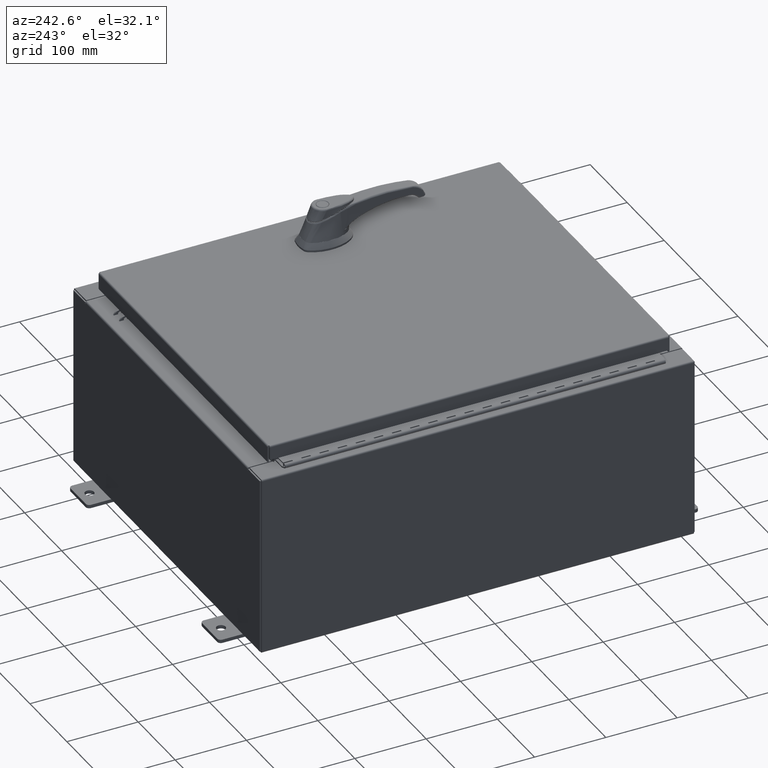
[diagram: clean part render]
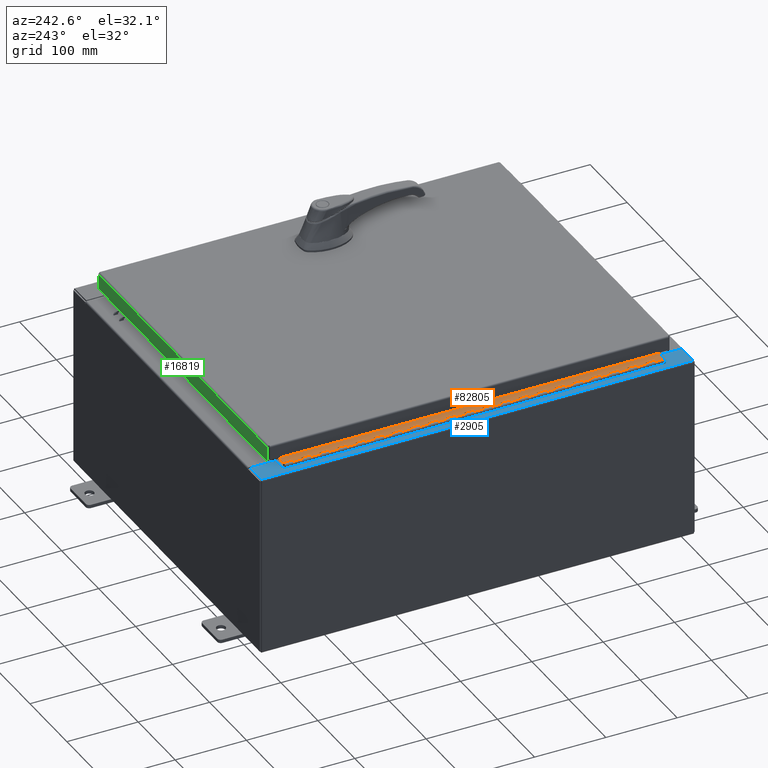
[diagram: same view with three faces highlighted in distinct colors, each labeled with its STEP entity id]
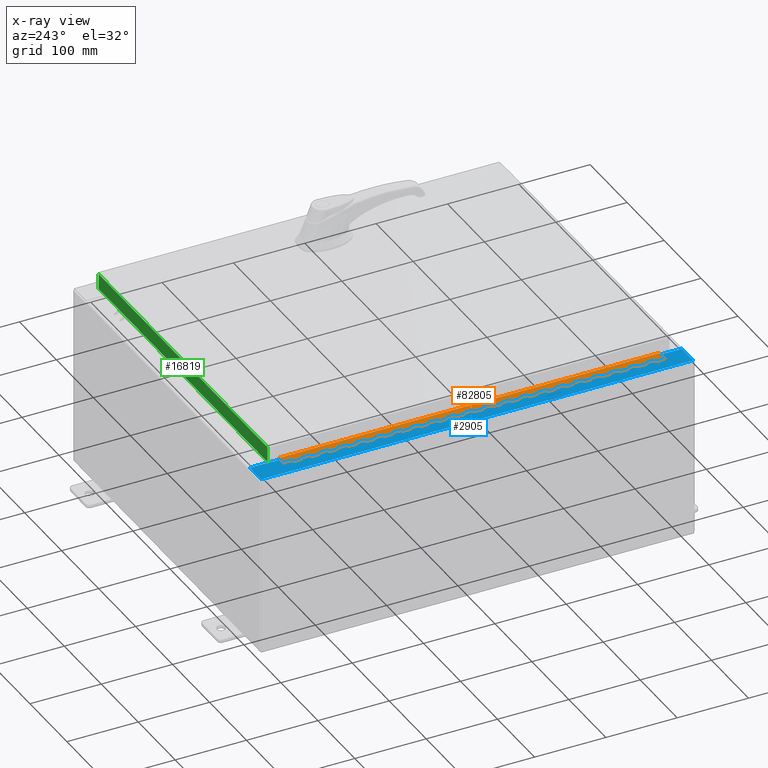
[diagram: x-ray of the same camera — body ghosted, the three highlighted faces saturated]
A machine part, auxiliary view with three faces highlighted in distinct colors.
The next image is the same camera in x-ray (body ghosted, the three faces saturated) — at least one of them is partly hidden behind the body in this view.
Their STEP definitions:

[orange] entity #82805 — the highlighted planar face has unit normal (-0, -0, 1).
#245 = VECTOR ( 'NONE', #78910, 39.37007874015748100 ) ;
#1133 = CARTESIAN_POINT ( 'NONE',  ( -0.6869999999999978300, 0.6754999999999996600, -5.000000000000000000 ) ) ;
#1215 = EDGE_CURVE ( 'NONE', #98426, #89876, #86142, .T. ) ;
#1486 = DIRECTION ( 'NONE',  ( 3.389037039080723100E-015, 1.000000000000000000, -0.0000000000000000000 ) ) ;
#1596 = VECTOR ( 'NONE', #99222, 39.37007874015748100 ) ;
#1697 = VECTOR ( 'NONE', #13944, 39.37007874015748100 ) ;
#1719 = DIRECTION ( 'NONE',  ( -3.389037039080723100E-015, -1.000000000000000000, 0.0000000000000000000 ) ) ;
#1795 = VERTEX_POINT ( 'NONE', #86577 ) ;
#1927 = CARTESIAN_POINT ( 'NONE',  ( -0.6869999999999978300, 0.6754999999999996600, -12.49999999999999800 ) ) ;
#2025 = VECTOR ( 'NONE', #79116, 39.37007874015748100 ) ;
#2128 = CARTESIAN_POINT ( 'NONE',  ( -0.6869999999999982800, 0.5504999999999997700, -20.50000000000000400 ) ) ;
#3467 = CARTESIAN_POINT ( 'NONE',  ( -0.6869999999999998300, 0.07549999999999991400, -21.00000000000000000 ) ) ;
#4033 = CARTESIAN_POINT ( 'NONE',  ( -0.6869999999999978300, 0.6754999999999996600, -20.00000000000000000 ) ) ;
#4083 = CARTESIAN_POINT ( 'NONE',  ( -0.6869999999999982800, 0.5504999999999997700, -9.500000000000000000 ) ) ;
#4100 = LINE ( 'NONE', #50893, #98999 ) ;
#4306 = VERTEX_POINT ( 'NONE', #85673 ) ;
#4532 = LINE ( 'NONE', #91220, #24859 ) ;
#4533 = VECTOR ( 'NONE', #45377, 39.37007874015748100 ) ;
#4940 = VERTEX_POINT ( 'NONE', #29490 ) ;
#5050 = VECTOR ( 'NONE', #111420, 39.37007874015748100 ) ;
#5444 = DIRECTION ( 'NONE',  ( 0.0000000000000000000, 0.0000000000000000000, 1.000000000000000000 ) ) ;
#5591 = VERTEX_POINT ( 'NONE', #62369 ) ;
#5974 = CARTESIAN_POINT ( 'NONE',  ( -0.6869999999999982800, 0.5504999999999997700, -8.500000000000000000 ) ) ;
#6077 = EDGE_CURVE ( 'NONE', #13432, #5591, #21992, .T. ) ;
#6509 = EDGE_CURVE ( 'NONE', #42896, #46609, #8448, .T. ) ;
#6587 = VECTOR ( 'NONE', #95588, 39.37007874015748100 ) ;
#6817 = ORIENTED_EDGE ( 'NONE', *, *, #13644, .F. ) ;
#6831 = VECTOR ( 'NONE', #63634, 39.37007874015748100 ) ;
#6838 = CARTESIAN_POINT ( 'NONE',  ( -0.6869999999999978300, 0.6754999999999996600, -20.50000000000000400 ) ) ;
#6901 = VERTEX_POINT ( 'NONE', #61366 ) ;
#6969 = EDGE_CURVE ( 'NONE', #94649, #4306, #70735, .T. ) ;
#6993 = VECTOR ( 'NONE', #67126, 39.37007874015748100 ) ;
#7235 = EDGE_CURVE ( 'NONE', #88875, #78121, #11048, .T. ) ;
#7550 = VERTEX_POINT ( 'NONE', #100424 ) ;
#7555 = ORIENTED_EDGE ( 'NONE', *, *, #98797, .F. ) ;
#7671 = ORIENTED_EDGE ( 'NONE', *, *, #103650, .F. ) ;
#7872 = LINE ( 'NONE', #36362, #30915 ) ;
#7903 = CARTESIAN_POINT ( 'NONE',  ( -0.6869999999999978300, 0.6754999999999996600, -14.49999999999999800 ) ) ;
#8011 = LINE ( 'NONE', #91549, #54122 ) ;
#8018 = CARTESIAN_POINT ( 'NONE',  ( -0.6869999999999982800, 0.5504999999999997700, -11.00000000000000000 ) ) ;
#8081 = VECTOR ( 'NONE', #81654, 39.37007874015748100 ) ;
#8144 = ORIENTED_EDGE ( 'NONE', *, *, #60128, .T. ) ;
#8213 = VERTEX_POINT ( 'NONE', #49531 ) ;
#8222 = CARTESIAN_POINT ( 'NONE',  ( -0.6869999999999978300, 0.6754999999999996600, -11.50000000000000000 ) ) ;
#8448 = LINE ( 'NONE', #72405, #95250 ) ;
#8568 = CARTESIAN_POINT ( 'NONE',  ( -0.6869999999999978300, 0.6754999999999996600, -19.00000000000000000 ) ) ;
#8624 = CARTESIAN_POINT ( 'NONE',  ( -0.6869999999999982800, 0.5504999999999997700, -19.50000000000000000 ) ) ;
#8689 = ORIENTED_EDGE ( 'NONE', *, *, #24264, .F. ) ;
#9019 = EDGE_CURVE ( 'NONE', #46733, #4306, #105757, .T. ) ;
#9525 = CARTESIAN_POINT ( 'NONE',  ( -0.6869999999999978300, 0.6754999999999996600, -6.499999999999999100 ) ) ;
#9632 = DIRECTION ( 'NONE',  ( -3.389037039080723100E-015, -1.000000000000000000, 0.0000000000000000000 ) ) ;
#9866 = CARTESIAN_POINT ( 'NONE',  ( -0.6869999999999973900, 0.8004999999999995500, -12.99999999999999800 ) ) ;
#9868 = LINE ( 'NONE', #62295, #53239 ) ;
#10053 = EDGE_CURVE ( 'NONE', #30767, #35459, #8011, .T. ) ;
#10404 = DIRECTION ( 'NONE',  ( 3.389037039080723100E-015, 1.000000000000000000, -0.0000000000000000000 ) ) ;
#10578 = EDGE_CURVE ( 'NONE', #69516, #39686, #52732, .T. ) ;
#10647 = CARTESIAN_POINT ( 'NONE',  ( -0.6869999999999978300, 0.6754999999999996600, -17.99999999999999600 ) ) ;
#10717 = CARTESIAN_POINT ( 'NONE',  ( -0.6869999999999973900, 0.8004999999999995500, -14.99999999999999800 ) ) ;
#11048 = LINE ( 'NONE', #37208, #59863 ) ;
#11170 = CARTESIAN_POINT ( 'NONE',  ( -0.6869999999999978300, 0.6754999999999996600, -7.499999999999999100 ) ) ;
#11378 = ORIENTED_EDGE ( 'NONE', *, *, #51311, .F. ) ;
#11478 = VECTOR ( 'NONE', #62601, 39.37007874015748100 ) ;
#11537 = VECTOR ( 'NONE', #69844, 39.37007874015748100 ) ;
#11668 = EDGE_CURVE ( 'NONE', #51905, #92235, #21374, .T. ) ;
#11967 = EDGE_CURVE ( 'NONE', #83050, #6901, #40751, .T. ) ;
#12679 = ORIENTED_EDGE ( 'NONE', *, *, #88886, .F. ) ;
#12693 = VERTEX_POINT ( 'NONE', #27062 ) ;
#12726 = VERTEX_POINT ( 'NONE', #93585 ) ;
#12937 = LINE ( 'NONE', #16157, #102414 ) ;
#13179 = DIRECTION ( 'NONE',  ( 3.389037039080723100E-015, 1.000000000000000000, -0.0000000000000000000 ) ) ;
#13238 = CARTESIAN_POINT ( 'NONE',  ( -0.6869999999999973900, 0.8004999999999995500, -13.50000000000000000 ) ) ;
#13432 = VERTEX_POINT ( 'NONE', #110444 ) ;
#13517 = LINE ( 'NONE', #31583, #33872 ) ;
#13523 = LINE ( 'NONE', #62242, #79957 ) ;
#13612 = VERTEX_POINT ( 'NONE', #61585 ) ;
#13644 = EDGE_CURVE ( 'NONE', #94649, #61203, #97532, .T. ) ;
#13868 = VECTOR ( 'NONE', #18163, 39.37007874015748100 ) ;
#13944 = DIRECTION ( 'NONE',  ( 0.0000000000000000000, 0.0000000000000000000, 1.000000000000000000 ) ) ;
#14123 = CARTESIAN_POINT ( 'NONE',  ( -0.6869999999999982800, 0.5504999999999997700, -3.500000000000000000 ) ) ;
#14128 = ORIENTED_EDGE ( 'NONE', *, *, #60310, .T. ) ;
#14280 = EDGE_CURVE ( 'NONE', #12726, #31728, #67649, .T. ) ;
#14991 = DIRECTION ( 'NONE',  ( 0.0000000000000000000, 0.0000000000000000000, 1.000000000000000000 ) ) ;
#15080 = VECTOR ( 'NONE', #75595, 39.37007874015748100 ) ;
#15107 = VERTEX_POINT ( 'NONE', #46438 ) ;
#15355 = ORIENTED_EDGE ( 'NONE', *, *, #104162, .F. ) ;
#15755 = DIRECTION ( 'NONE',  ( -3.389037039080723100E-015, -1.000000000000000000, 0.0000000000000000000 ) ) ;
#15800 = ORIENTED_EDGE ( 'NONE', *, *, #49452, .T. ) ;
#16157 = CARTESIAN_POINT ( 'NONE',  ( -0.6869999999999978300, 0.6754999999999996600, -21.00000000000000000 ) ) ;
#16411 = DIRECTION ( 'NONE',  ( 3.389037039080723100E-015, 1.000000000000000000, -0.0000000000000000000 ) ) ;
#16712 = CARTESIAN_POINT ( 'NONE',  ( -0.6869999999999973900, 0.8004999999999995500, -1.499999999999999800 ) ) ;
#16813 = VERTEX_POINT ( 'NONE', #8018 ) ;
#17085 = VECTOR ( 'NONE', #87684, 39.37007874015748100 ) ;
#17171 = CARTESIAN_POINT ( 'NONE',  ( -0.6869999999999978300, 0.6754999999999996600, -21.00000000000000000 ) ) ;
#17320 = VERTEX_POINT ( 'NONE', #78911 ) ;
#17367 = ORIENTED_EDGE ( 'NONE', *, *, #42492, .F. ) ;
#17472 = CARTESIAN_POINT ( 'NONE',  ( -0.6869999999999973900, 0.8004999999999995500, -11.99999999999999800 ) ) ;
#17555 = VECTOR ( 'NONE', #110610, 39.37007874015748100 ) ;
#17599 = FACE_OUTER_BOUND ( 'NONE', #63999, .T. ) ;
#17778 = CARTESIAN_POINT ( 'NONE',  ( -0.6869999999999978300, 0.6754999999999996600, -9.500000000000000000 ) ) ;
#17889 = CARTESIAN_POINT ( 'NONE',  ( -0.6869999999999973900, 0.8004999999999995500, -4.000000000000000000 ) ) ;
#17930 = ORIENTED_EDGE ( 'NONE', *, *, #59123, .F. ) ;
#18105 = VERTEX_POINT ( 'NONE', #93495 ) ;
#18127 = DIRECTION ( 'NONE',  ( -3.389037039080723100E-015, -1.000000000000000000, 0.0000000000000000000 ) ) ;
#18163 = DIRECTION ( 'NONE',  ( 3.389037039080723100E-015, 1.000000000000000000, -0.0000000000000000000 ) ) ;
#18191 = EDGE_CURVE ( 'NONE', #13612, #78121, #12937, .T. ) ;
#18254 = ORIENTED_EDGE ( 'NONE', *, *, #73464, .F. ) ;
#18309 = CARTESIAN_POINT ( 'NONE',  ( -0.6869999999999973900, 0.8004999999999995500, -18.50000000000000000 ) ) ;
#18342 = CARTESIAN_POINT ( 'NONE',  ( -0.6869999999999978300, 0.6754999999999996600, -15.50000000000000000 ) ) ;
#18404 = DIRECTION ( 'NONE',  ( -3.389037039080723100E-015, -1.000000000000000000, 0.0000000000000000000 ) ) ;
#18978 = EDGE_CURVE ( 'NONE', #61203, #100637, #106566, .T. ) ;
#19285 = VECTOR ( 'NONE', #106730, 39.37007874015748100 ) ;
#19355 = ORIENTED_EDGE ( 'NONE', *, *, #11668, .F. ) ;
#19932 = LINE ( 'NONE', #112209, #63317 ) ;
#20037 = LINE ( 'NONE', #99201, #106791 ) ;
#20068 = CARTESIAN_POINT ( 'NONE',  ( -0.6869999999999982800, 0.5504999999999997700, -8.500000000000000000 ) ) ;
#20422 = EDGE_CURVE ( 'NONE', #103805, #77217, #71134, .T. ) ;
#20787 = DIRECTION ( 'NONE',  ( -3.389037039080723100E-015, -1.000000000000000000, 0.0000000000000000000 ) ) ;
#20868 = LINE ( 'NONE', #85088, #23596 ) ;
#21194 = VECTOR ( 'NONE', #5444, 39.37007874015748100 ) ;
#21300 = EDGE_CURVE ( 'NONE', #102275, #7550, #96833, .T. ) ;
#21374 = LINE ( 'NONE', #16712, #110853 ) ;
#21963 = LINE ( 'NONE', #37406, #19285 ) ;
#21992 = LINE ( 'NONE', #42190, #111483 ) ;
#22212 = ORIENTED_EDGE ( 'NONE', *, *, #33923, .T. ) ;
#22555 = ORIENTED_EDGE ( 'NONE', *, *, #69768, .T. ) ;
#22722 = ORIENTED_EDGE ( 'NONE', *, *, #73048, .F. ) ;
#22854 = DIRECTION ( 'NONE',  ( -3.389037039080723100E-015, -1.000000000000000000, 0.0000000000000000000 ) ) ;
#22904 = DIRECTION ( 'NONE',  ( 0.0000000000000000000, -0.0000000000000000000, -1.000000000000000000 ) ) ;
#23109 = EDGE_CURVE ( 'NONE', #70336, #86796, #24703, .T. ) ;
#23212 = EDGE_CURVE ( 'NONE', #31752, #52184, #21963, .T. ) ;
#23544 = LINE ( 'NONE', #107494, #52066 ) ;
#23553 = DIRECTION ( 'NONE',  ( 0.0000000000000000000, -0.0000000000000000000, -1.000000000000000000 ) ) ;
#23596 = VECTOR ( 'NONE', #15755, 39.37007874015748100 ) ;
#23875 = CARTESIAN_POINT ( 'NONE',  ( -0.6869999999999978300, 0.6754999999999996600, -11.00000000000000000 ) ) ;
#24059 = CARTESIAN_POINT ( 'NONE',  ( -0.6869999999999978300, 0.6754999999999996600, -21.00000000000000000 ) ) ;
#24191 = VERTEX_POINT ( 'NONE', #77131 ) ;
#24264 = EDGE_CURVE ( 'NONE', #17320, #46609, #42208, .T. ) ;
#24625 = VECTOR ( 'NONE', #54756, 39.37007874015748100 ) ;
#24703 = LINE ( 'NONE', #65853, #1697 ) ;
#24741 = CARTESIAN_POINT ( 'NONE',  ( -0.6869999999999973900, 0.8004999999999995500, -6.499999999999999100 ) ) ;
#24859 = VECTOR ( 'NONE', #56743, 39.37007874015748100 ) ;
#24898 = ORIENTED_EDGE ( 'NONE', *, *, #11967, .F. ) ;
#25444 = LINE ( 'NONE', #34702, #51192 ) ;
#25614 = LINE ( 'NONE', #24741, #86599 ) ;
#26164 = CARTESIAN_POINT ( 'NONE',  ( -0.6869999999999978300, 0.6754999999999996600, -14.99999999999999800 ) ) ;
#26316 = ORIENTED_EDGE ( 'NONE', *, *, #105627, .F. ) ;
#26320 = ORIENTED_EDGE ( 'NONE', *, *, #89802, .F. ) ;
#26463 = ORIENTED_EDGE ( 'NONE', *, *, #7235, .F. ) ;
#26828 = VECTOR ( 'NONE', #99921, 39.37007874015748100 ) ;
#26928 = ORIENTED_EDGE ( 'NONE', *, *, #55634, .T. ) ;
#26959 = CARTESIAN_POINT ( 'NONE',  ( -0.6869999999999982800, 0.5504999999999997700, -21.00000000000000000 ) ) ;
#27052 = CARTESIAN_POINT ( 'NONE',  ( -0.6869999999999982800, 0.5504999999999997700, -0.5000000000000000000 ) ) ;
#27062 = CARTESIAN_POINT ( 'NONE',  ( -0.6869999999999978300, 0.6754999999999996600, -12.99999999999999800 ) ) ;
#27166 = DIRECTION ( 'NONE',  ( 0.0000000000000000000, 0.0000000000000000000, 1.000000000000000000 ) ) ;
#27181 = DIRECTION ( 'NONE',  ( 1.000000000000000000, -3.369016658928398200E-015, 0.0000000000000000000 ) ) ;
#27186 = EDGE_CURVE ( 'NONE', #43013, #90218, #28442, .T. ) ;
#27280 = VECTOR ( 'NONE', #36013, 39.37007874015748100 ) ;
#27366 = ORIENTED_EDGE ( 'NONE', *, *, #81843, .F. ) ;
#27475 = CARTESIAN_POINT ( 'NONE',  ( -0.6869999999999973900, 0.8004999999999995500, -0.5000000000000000000 ) ) ;
#27604 = CARTESIAN_POINT ( 'NONE',  ( -0.6869999999999973900, 0.8004999999999995500, -5.000000000000000000 ) ) ;
#27655 = CARTESIAN_POINT ( 'NONE',  ( -0.6869999999999982800, 0.5504999999999997700, -2.000000000000000000 ) ) ;
#27668 = VECTOR ( 'NONE', #99432, 39.37007874015748100 ) ;
#27775 = EDGE_CURVE ( 'NONE', #62250, #45181, #93473, .T. ) ;
#28088 = LINE ( 'NONE', #78750, #97230 ) ;
#28442 = LINE ( 'NONE', #40957, #94894 ) ;
#28628 = CARTESIAN_POINT ( 'NONE',  ( -0.6869999999999978300, 0.6754999999999996600, -21.00000000000000000 ) ) ;
#28692 = VERTEX_POINT ( 'NONE', #18342 ) ;
#28878 = CARTESIAN_POINT ( 'NONE',  ( -0.6869999999999982800, 0.5504999999999997700, -14.49999999999999800 ) ) ;
#29137 = VERTEX_POINT ( 'NONE', #48908 ) ;
#29315 = VECTOR ( 'NONE', #48960, 39.37007874015748100 ) ;
#29490 = CARTESIAN_POINT ( 'NONE',  ( -0.6869999999999982800, 0.5504999999999997700, -6.000000000000000900 ) ) ;
#29637 = LINE ( 'NONE', #101172, #70326 ) ;
#29744 = VECTOR ( 'NONE', #94748, 39.37007874015748100 ) ;
#30452 = CARTESIAN_POINT ( 'NONE',  ( -0.6869999999999978300, 0.6754999999999996600, -1.499999999999999800 ) ) ;
#30615 = CARTESIAN_POINT ( 'NONE',  ( -0.6869999999999973900, 0.8004999999999995500, -8.000000000000000000 ) ) ;
#30767 = VERTEX_POINT ( 'NONE', #11170 ) ;
#30915 = VECTOR ( 'NONE', #96969, 39.37007874015748100 ) ;
#30936 = DIRECTION ( 'NONE',  ( 0.0000000000000000000, 0.0000000000000000000, 1.000000000000000000 ) ) ;
#30972 = EDGE_CURVE ( 'NONE', #59650, #88875, #95790, .T. ) ;
#31197 = VERTEX_POINT ( 'NONE', #111467 ) ;
#31227 = LINE ( 'NONE', #24059, #97683 ) ;
#31583 = CARTESIAN_POINT ( 'NONE',  ( -0.6869999999999973900, 0.8004999999999995500, -8.500000000000000000 ) ) ;
#31728 = VERTEX_POINT ( 'NONE', #93689 ) ;
#31752 = VERTEX_POINT ( 'NONE', #110695 ) ;
#32065 = LINE ( 'NONE', #38751, #55096 ) ;
#32348 = ORIENTED_EDGE ( 'NONE', *, *, #92846, .F. ) ;
#32476 = EDGE_CURVE ( 'NONE', #84527, #77217, #65719, .T. ) ;
#32587 = EDGE_CURVE ( 'NONE', #39686, #104034, #37244, .T. ) ;
#32763 = LINE ( 'NONE', #58380, #6993 ) ;
#33019 = VERTEX_POINT ( 'NONE', #77653 ) ;
#33103 = DIRECTION ( 'NONE',  ( -3.389037039080723100E-015, -1.000000000000000000, 0.0000000000000000000 ) ) ;
#33497 = ORIENTED_EDGE ( 'NONE', *, *, #100402, .F. ) ;
#33658 = EDGE_CURVE ( 'NONE', #62696, #84522, #23544, .T. ) ;
#33660 = VERTEX_POINT ( 'NONE', #46878 ) ;
#33872 = VECTOR ( 'NONE', #22854, 39.37007874015748100 ) ;
#33923 = EDGE_CURVE ( 'NONE', #31197, #84830, #73627, .T. ) ;
#34206 = VERTEX_POINT ( 'NONE', #94533 ) ;
#34279 = ORIENTED_EDGE ( 'NONE', *, *, #14280, .F. ) ;
#34320 = CARTESIAN_POINT ( 'NONE',  ( -0.6869999999999978300, 0.6754999999999996600, -14.00000000000000000 ) ) ;
#34637 = DIRECTION ( 'NONE',  ( 0.0000000000000000000, 0.0000000000000000000, 1.000000000000000000 ) ) ;
#34702 = CARTESIAN_POINT ( 'NONE',  ( -0.6869999999999982800, 0.5504999999999997700, -10.50000000000000000 ) ) ;
#35103 = ORIENTED_EDGE ( 'NONE', *, *, #57056, .T. ) ;
#35240 = LINE ( 'NONE', #8624, #101631 ) ;
#35308 = CARTESIAN_POINT ( 'NONE',  ( -0.6869999999999982800, 0.5504999999999997700, -2.999999999999999600 ) ) ;
#35381 = CARTESIAN_POINT ( 'NONE',  ( -0.6869999999999973900, 0.8004999999999995500, -16.00000000000000000 ) ) ;
#35459 = VERTEX_POINT ( 'NONE', #48397 ) ;
#35541 = VERTEX_POINT ( 'NONE', #5974 ) ;
#35758 = VECTOR ( 'NONE', #47520, 39.37007874015748100 ) ;
#35965 = LINE ( 'NONE', #30615, #56245 ) ;
#36013 = DIRECTION ( 'NONE',  ( 3.389037039080723100E-015, 1.000000000000000000, -0.0000000000000000000 ) ) ;
#36362 = CARTESIAN_POINT ( 'NONE',  ( -0.6869999999999973900, 0.8004999999999995500, -7.000000000000000000 ) ) ;
#36620 = VERTEX_POINT ( 'NONE', #17778 ) ;
#36658 = EDGE_CURVE ( 'NONE', #8213, #82488, #106091, .T. ) ;
#36700 = CARTESIAN_POINT ( 'NONE',  ( -0.6869999999999982800, 0.5504999999999997700, -13.50000000000000000 ) ) ;
#37047 = LINE ( 'NONE', #4083, #57351 ) ;
#37070 = ORIENTED_EDGE ( 'NONE', *, *, #95415, .F. ) ;
#37208 = CARTESIAN_POINT ( 'NONE',  ( -0.6869999999999973900, 0.8004999999999995500, -2.999999999999999600 ) ) ;
#37244 = LINE ( 'NONE', #10717, #11478 ) ;
#37299 = LINE ( 'NONE', #17889, #11537 ) ;
#37406 = CARTESIAN_POINT ( 'NONE',  ( -0.6869999999999973900, 0.8004999999999995500, -14.00000000000000000 ) ) ;
#37733 = ORIENTED_EDGE ( 'NONE', *, *, #69371, .F. ) ;
#37760 = LINE ( 'NONE', #104315, #81132 ) ;
#37941 = DIRECTION ( 'NONE',  ( 3.369016658928398200E-015, 1.000000000000000000, 0.0000000000000000000 ) ) ;
#38149 = ORIENTED_EDGE ( 'NONE', *, *, #6077, .F. ) ;
#38499 = CARTESIAN_POINT ( 'NONE',  ( -0.6869999999999982800, 0.5504999999999997700, -1.499999999999999800 ) ) ;
#38577 = DIRECTION ( 'NONE',  ( 0.0000000000000000000, -0.0000000000000000000, -1.000000000000000000 ) ) ;
#38751 = CARTESIAN_POINT ( 'NONE',  ( -0.6869999999999973900, 0.8004999999999995500, -12.49999999999999800 ) ) ;
#38819 = CARTESIAN_POINT ( 'NONE',  ( -0.6869999999999978300, 0.6754999999999996600, -21.00000000000000000 ) ) ;
#39174 = CARTESIAN_POINT ( 'NONE',  ( -0.6869999999999982800, 0.5504999999999997700, -2.500000000000000000 ) ) ;
#39287 = LINE ( 'NONE', #107057, #103019 ) ;
#39515 = EDGE_CURVE ( 'NONE', #70149, #99660, #9868, .T. ) ;
#39686 = VERTEX_POINT ( 'NONE', #89885 ) ;
#39770 = CARTESIAN_POINT ( 'NONE',  ( -0.6869999999999982800, 0.5504999999999997700, -12.49999999999999800 ) ) ;
#40062 = VECTOR ( 'NONE', #1486, 39.37007874015748100 ) ;
#40751 = LINE ( 'NONE', #107190, #107157 ) ;
#40862 = EDGE_CURVE ( 'NONE', #101493, #29137, #57104, .T. ) ;
#40867 = LINE ( 'NONE', #58175, #15080 ) ;
#40957 = CARTESIAN_POINT ( 'NONE',  ( -0.6869999999999982800, 0.5504999999999997700, -18.50000000000000000 ) ) ;
#41405 = CARTESIAN_POINT ( 'NONE',  ( -0.6870000000000022800, -0.6245000000000003900, 0.0000000000000000000 ) ) ;
#41658 = VERTEX_POINT ( 'NONE', #7903 ) ;
#41959 = ORIENTED_EDGE ( 'NONE', *, *, #109565, .F. ) ;
#42190 = CARTESIAN_POINT ( 'NONE',  ( -0.6869999999999973900, 0.8004999999999995500, -9.000000000000000000 ) ) ;
#42208 = LINE ( 'NONE', #2128, #82844 ) ;
#42426 = CARTESIAN_POINT ( 'NONE',  ( -0.6869999999999978300, 0.6754999999999996600, -21.00000000000000000 ) ) ;
#42492 = EDGE_CURVE ( 'NONE', #102275, #35541, #13517, .T. ) ;
#42583 = ORIENTED_EDGE ( 'NONE', *, *, #92075, .F. ) ;
#42869 = ORIENTED_EDGE ( 'NONE', *, *, #21300, .T. ) ;
#42896 = VERTEX_POINT ( 'NONE', #3467 ) ;
#43013 = VERTEX_POINT ( 'NONE', #49212 ) ;
#43376 = LINE ( 'NONE', #110514, #66398 ) ;
#43417 = CARTESIAN_POINT ( 'NONE',  ( -0.6869999999999982800, 0.5504999999999997700, -16.50000000000000000 ) ) ;
#43640 = DIRECTION ( 'NONE',  ( 3.389037039080723100E-015, 1.000000000000000000, -0.0000000000000000000 ) ) ;
#43646 = CARTESIAN_POINT ( 'NONE',  ( -0.6869999999999982800, 0.5504999999999997700, -14.49999999999999800 ) ) ;
#43677 = ORIENTED_EDGE ( 'NONE', *, *, #1215, .F. ) ;
#44202 = EDGE_CURVE ( 'NONE', #90218, #86796, #29637, .T. ) ;
#44304 = VERTEX_POINT ( 'NONE', #23875 ) ;
#44311 = CARTESIAN_POINT ( 'NONE',  ( -0.6869999999999973900, 0.8004999999999995500, -10.00000000000000000 ) ) ;
#44322 = AXIS2_PLACEMENT_3D ( 'NONE', #87818, #27181, #53322 ) ;
#44510 = VECTOR ( 'NONE', #18404, 39.37007874015748100 ) ;
#44590 = PLANE ( 'NONE',  #44322 ) ;
#44719 = LINE ( 'NONE', #52121, #88114 ) ;
#45181 = VERTEX_POINT ( 'NONE', #51615 ) ;
#45377 = DIRECTION ( 'NONE',  ( 0.0000000000000000000, -0.0000000000000000000, -1.000000000000000000 ) ) ;
#46077 = VERTEX_POINT ( 'NONE', #6838 ) ;
#46438 = CARTESIAN_POINT ( 'NONE',  ( -0.6869999999999978300, 0.6754999999999996600, -13.50000000000000000 ) ) ;
#46473 = CARTESIAN_POINT ( 'NONE',  ( -0.6869999999999973900, 0.8004999999999995500, -20.00000000000000000 ) ) ;
#46609 = VERTEX_POINT ( 'NONE', #26959 ) ;
#46733 = VERTEX_POINT ( 'NONE', #63630 ) ;
#46878 = CARTESIAN_POINT ( 'NONE',  ( -0.6869999999999978300, 0.6754999999999996600, -18.50000000000000000 ) ) ;
#46884 = LINE ( 'NONE', #18309, #90254 ) ;
#46931 = CARTESIAN_POINT ( 'NONE',  ( -0.6869999999999978300, 0.6754999999999996600, -21.00000000000000000 ) ) ;
#47144 = VECTOR ( 'NONE', #73826, 39.37007874015748100 ) ;
#47154 = EDGE_CURVE ( 'NONE', #46077, #17320, #79431, .T. ) ;
#47218 = CARTESIAN_POINT ( 'NONE',  ( -0.6869999999999978300, 0.6754999999999996600, -21.00000000000000000 ) ) ;
#47520 = DIRECTION ( 'NONE',  ( 0.0000000000000000000, 0.0000000000000000000, 1.000000000000000000 ) ) ;
#47613 = LINE ( 'NONE', #46931, #1596 ) ;
#47883 = ORIENTED_EDGE ( 'NONE', *, *, #69121, .F. ) ;
#48087 = ORIENTED_EDGE ( 'NONE', *, *, #30972, .F. ) ;
#48359 = ORIENTED_EDGE ( 'NONE', *, *, #108353, .F. ) ;
#48397 = CARTESIAN_POINT ( 'NONE',  ( -0.6869999999999978300, 0.6754999999999996600, -7.000000000000000000 ) ) ;
#48490 = ORIENTED_EDGE ( 'NONE', *, *, #10578, .F. ) ;
#48900 = CARTESIAN_POINT ( 'NONE',  ( -0.6869999999999982800, 0.5504999999999997700, -17.50000000000000000 ) ) ;
#48908 = CARTESIAN_POINT ( 'NONE',  ( -0.6869999999999982800, 0.5504999999999997700, -11.50000000000000000 ) ) ;
#48960 = DIRECTION ( 'NONE',  ( 0.0000000000000000000, -0.0000000000000000000, -1.000000000000000000 ) ) ;
#49076 = VECTOR ( 'NONE', #20787, 39.37007874015748100 ) ;
#49212 = CARTESIAN_POINT ( 'NONE',  ( -0.6869999999999982800, 0.5504999999999997700, -18.50000000000000000 ) ) ;
#49391 = ORIENTED_EDGE ( 'NONE', *, *, #39515, .F. ) ;
#49452 = EDGE_CURVE ( 'NONE', #41658, #52184, #71195, .T. ) ;
#49531 = CARTESIAN_POINT ( 'NONE',  ( -0.6869999999999982800, 0.5504999999999997700, -10.00000000000000000 ) ) ;
#49724 = ORIENTED_EDGE ( 'NONE', *, *, #89915, .T. ) ;
#49748 = CARTESIAN_POINT ( 'NONE',  ( -0.6869999999999982800, 0.5504999999999997700, -3.500000000000000000 ) ) ;
#49993 = CARTESIAN_POINT ( 'NONE',  ( -0.6869999999999978300, 0.6754999999999996600, -21.00000000000000000 ) ) ;
#50156 = EDGE_CURVE ( 'NONE', #1795, #94638, #37299, .T. ) ;
#50283 = CARTESIAN_POINT ( 'NONE',  ( -0.6869999999999978300, 0.6754999999999996600, -5.500000000000000000 ) ) ;
#50576 = CARTESIAN_POINT ( 'NONE',  ( -0.6869999999999973900, 0.8004999999999995500, -11.50000000000000000 ) ) ;
#50602 = LINE ( 'NONE', #36700, #4533 ) ;
#50761 = DIRECTION ( 'NONE',  ( 0.0000000000000000000, -0.0000000000000000000, -1.000000000000000000 ) ) ;
#50832 = ORIENTED_EDGE ( 'NONE', *, *, #89867, .T. ) ;
#50893 = CARTESIAN_POINT ( 'NONE',  ( -0.6869999999999973900, 0.8004999999999995500, -3.500000000000000000 ) ) ;
#50940 = VECTOR ( 'NONE', #75687, 39.37007874015748100 ) ;
#51192 = VECTOR ( 'NONE', #104046, 39.37007874015748100 ) ;
#51311 = EDGE_CURVE ( 'NONE', #70336, #98531, #20868, .T. ) ;
#51467 = VECTOR ( 'NONE', #90751, 39.37007874015748100 ) ;
#51497 = EDGE_CURVE ( 'NONE', #84691, #83050, #58836, .T. ) ;
#51615 = CARTESIAN_POINT ( 'NONE',  ( -0.6869999999999982800, 0.5504999999999997700, -12.99999999999999800 ) ) ;
#51639 = DIRECTION ( 'NONE',  ( -3.389037039080723100E-015, -1.000000000000000000, 0.0000000000000000000 ) ) ;
#51905 = VERTEX_POINT ( 'NONE', #30452 ) ;
#51960 = VECTOR ( 'NONE', #82826, 39.37007874015748100 ) ;
#52066 = VECTOR ( 'NONE', #55589, 39.37007874015748100 ) ;
#52088 = CARTESIAN_POINT ( 'NONE',  ( -0.6869999999999982800, 0.5504999999999997700, -19.00000000000000000 ) ) ;
#52121 = CARTESIAN_POINT ( 'NONE',  ( -0.6869999999999973900, 0.8004999999999995500, -17.50000000000000000 ) ) ;
#52184 = VERTEX_POINT ( 'NONE', #34320 ) ;
#52421 = DIRECTION ( 'NONE',  ( 3.389037039080723100E-015, 1.000000000000000000, -0.0000000000000000000 ) ) ;
#52557 = EDGE_CURVE ( 'NONE', #95510, #1795, #73575, .T. ) ;
#52732 = LINE ( 'NONE', #43646, #6587 ) ;
#52738 = CARTESIAN_POINT ( 'NONE',  ( -0.6869999999999982800, 0.5504999999999997700, -17.50000000000000000 ) ) ;
#53050 = LINE ( 'NONE', #9866, #27280 ) ;
#53239 = VECTOR ( 'NONE', #10404, 39.37007874015748100 ) ;
#53302 = VECTOR ( 'NONE', #74721, 39.37007874015748100 ) ;
#53322 = DIRECTION ( 'NONE',  ( 3.369016658928398200E-015, 1.000000000000000000, 0.0000000000000000000 ) ) ;
#53657 = DIRECTION ( 'NONE',  ( 0.0000000000000000000, 0.0000000000000000000, 1.000000000000000000 ) ) ;
#54010 = DIRECTION ( 'NONE',  ( 0.0000000000000000000, -0.0000000000000000000, -1.000000000000000000 ) ) ;
#54122 = VECTOR ( 'NONE', #30936, 39.37007874015748100 ) ;
#54409 = VECTOR ( 'NONE', #76735, 39.37007874015748100 ) ;
#54648 = LINE ( 'NONE', #74111, #51960 ) ;
#54679 = ORIENTED_EDGE ( 'NONE', *, *, #103314, .T. ) ;
#54756 = DIRECTION ( 'NONE',  ( 0.0000000000000000000, 0.0000000000000000000, 1.000000000000000000 ) ) ;
#55022 = CARTESIAN_POINT ( 'NONE',  ( -0.6869999999999982800, 0.5504999999999997700, -1.000000000000000000 ) ) ;
#55096 = VECTOR ( 'NONE', #90645, 39.37007874015748100 ) ;
#55432 = EDGE_CURVE ( 'NONE', #12726, #94638, #104642, .T. ) ;
#55589 = DIRECTION ( 'NONE',  ( 0.0000000000000000000, -0.0000000000000000000, -1.000000000000000000 ) ) ;
#55594 = ORIENTED_EDGE ( 'NONE', *, *, #77659, .F. ) ;
#55634 = EDGE_CURVE ( 'NONE', #28692, #104034, #47613, .T. ) ;
#55713 = ORIENTED_EDGE ( 'NONE', *, *, #20422, .F. ) ;
#56245 = VECTOR ( 'NONE', #13179, 39.37007874015748100 ) ;
#56591 = ORIENTED_EDGE ( 'NONE', *, *, #96351, .F. ) ;
#56710 = CARTESIAN_POINT ( 'NONE',  ( -0.6869999999999978300, 0.6754999999999996600, -21.00000000000000000 ) ) ;
#56743 = DIRECTION ( 'NONE',  ( 3.389037039080723100E-015, 1.000000000000000000, -0.0000000000000000000 ) ) ;
#57056 = EDGE_CURVE ( 'NONE', #108695, #18105, #31227, .T. ) ;
#57104 = LINE ( 'NONE', #50576, #54409 ) ;
#57351 = VECTOR ( 'NONE', #64679, 39.37007874015748100 ) ;
#57744 = EDGE_CURVE ( 'NONE', #76805, #97676, #44719, .T. ) ;
#57848 = ORIENTED_EDGE ( 'NONE', *, *, #36658, .F. ) ;
#57849 = CARTESIAN_POINT ( 'NONE',  ( -0.6869999999999978300, 0.6754999999999996600, -19.50000000000000000 ) ) ;
#58175 = CARTESIAN_POINT ( 'NONE',  ( -0.6869999999999973900, 0.8004999999999995500, -6.000000000000000900 ) ) ;
#58275 = CARTESIAN_POINT ( 'NONE',  ( -0.6869999999999978300, 0.6754999999999996600, -10.00000000000000000 ) ) ;
#58380 = CARTESIAN_POINT ( 'NONE',  ( -0.6869999999999973900, 0.8004999999999995500, -2.000000000000000000 ) ) ;
#58819 = CARTESIAN_POINT ( 'NONE',  ( -0.6869999999999978300, 0.6754999999999996600, -0.5000000000000000000 ) ) ;
#58836 = LINE ( 'NONE', #43417, #79154 ) ;
#58875 = LINE ( 'NONE', #97022, #79195 ) ;
#58984 = EDGE_CURVE ( 'NONE', #105172, #62696, #25614, .T. ) ;
#58998 = ORIENTED_EDGE ( 'NONE', *, *, #102886, .F. ) ;
#59123 = EDGE_CURVE ( 'NONE', #100637, #104737, #37760, .T. ) ;
#59650 = VERTEX_POINT ( 'NONE', #78398 ) ;
#59658 = VECTOR ( 'NONE', #93351, 39.37007874015748100 ) ;
#59755 = ORIENTED_EDGE ( 'NONE', *, *, #77553, .F. ) ;
#59770 = EDGE_CURVE ( 'NONE', #84522, #35459, #7872, .T. ) ;
#59863 = VECTOR ( 'NONE', #97840, 39.37007874015748100 ) ;
#60128 = EDGE_CURVE ( 'NONE', #101493, #44304, #95985, .T. ) ;
#60310 = EDGE_CURVE ( 'NONE', #15107, #12693, #110824, .T. ) ;
#60558 = CARTESIAN_POINT ( 'NONE',  ( -0.6869999999999982800, 0.5504999999999997700, -9.500000000000000000 ) ) ;
#60626 = VERTEX_POINT ( 'NONE', #61600 ) ;
#61203 = VERTEX_POINT ( 'NONE', #76360 ) ;
#61262 = VECTOR ( 'NONE', #107856, 39.37007874015748100 ) ;
#61366 = CARTESIAN_POINT ( 'NONE',  ( -0.6869999999999978300, 0.6754999999999996600, -17.00000000000000000 ) ) ;
#61432 = DIRECTION ( 'NONE',  ( 0.0000000000000000000, -0.0000000000000000000, -1.000000000000000000 ) ) ;
#61585 = CARTESIAN_POINT ( 'NONE',  ( -0.6869999999999978300, 0.6754999999999996600, -3.500000000000000000 ) ) ;
#61600 = CARTESIAN_POINT ( 'NONE',  ( -0.6869999999999982800, 0.5504999999999997700, -10.50000000000000000 ) ) ;
#62242 = CARTESIAN_POINT ( 'NONE',  ( -0.6869999999999973900, 0.8004999999999995500, -9.500000000000000000 ) ) ;
#62250 = VERTEX_POINT ( 'NONE', #62541 ) ;
#62295 = CARTESIAN_POINT ( 'NONE',  ( -0.6869999999999973900, 0.8004999999999995500, -17.99999999999999600 ) ) ;
#62369 = CARTESIAN_POINT ( 'NONE',  ( -0.6869999999999978300, 0.6754999999999996600, -9.000000000000000000 ) ) ;
#62441 = VECTOR ( 'NONE', #61432, 39.37007874015748100 ) ;
#62541 = CARTESIAN_POINT ( 'NONE',  ( -0.6869999999999982800, 0.5504999999999997700, -12.49999999999999800 ) ) ;
#62601 = DIRECTION ( 'NONE',  ( 3.389037039080723100E-015, 1.000000000000000000, -0.0000000000000000000 ) ) ;
#62696 = VERTEX_POINT ( 'NONE', #79827 ) ;
#62916 = ORIENTED_EDGE ( 'NONE', *, *, #32476, .T. ) ;
#63317 = VECTOR ( 'NONE', #86802, 39.37007874015748100 ) ;
#63522 = ORIENTED_EDGE ( 'NONE', *, *, #23212, .F. ) ;
#63630 = CARTESIAN_POINT ( 'NONE',  ( -0.6869999999999998300, 0.07549999999999991400, 0.0000000000000000000 ) ) ;
#63634 = DIRECTION ( 'NONE',  ( 0.0000000000000000000, -0.0000000000000000000, -1.000000000000000000 ) ) ;
#63999 = EDGE_LOOP ( 'NONE', ( #55594, #100975, #8689, #81562, #50832, #43677, #74718, #11378, #105445, #97189, #76820, #81805, #49724, #49391, #12679, #107937, #22555, #24898, #87214, #88899, #35103, #82550, #7671, #56591, #26928, #84166, #48490, #32348, #15800, #63522, #97993, #18254, #14128, #15355, #103257, #41959, #97545, #22722, #27366, #79738, #8144, #89391, #48359, #26316, #112440, #57848, #59755, #37733, #81222, #38149, #85378, #17367, #42869, #37070, #33497, #101857, #68245, #94263, #97975, #95703, #54679, #86892, #42583, #58998, #62916, #55713, #81645, #34279, #69085, #86648, #92852, #47883, #74781, #26463, #48087, #94421, #22212, #7555, #26320, #19355, #82921, #17930, #94459, #6817, #66659, #109122 ) ) ;
#64679 = DIRECTION ( 'NONE',  ( 0.0000000000000000000, -0.0000000000000000000, -1.000000000000000000 ) ) ;
#65043 = CARTESIAN_POINT ( 'NONE',  ( -0.6869999999999982800, 0.5504999999999997700, -15.50000000000000000 ) ) ;
#65143 = LINE ( 'NONE', #52738, #62441 ) ;
#65719 = LINE ( 'NONE', #17171, #109074 ) ;
#65853 = CARTESIAN_POINT ( 'NONE',  ( -0.6869999999999978300, 0.6754999999999996600, -21.00000000000000000 ) ) ;
#66095 = VECTOR ( 'NONE', #92538, 39.37007874015748100 ) ;
#66243 = VERTEX_POINT ( 'NONE', #89978 ) ;
#66366 = CARTESIAN_POINT ( 'NONE',  ( -0.6869999999999982800, 0.5504999999999997700, -4.500000000000000000 ) ) ;
#66398 = VECTOR ( 'NONE', #101820, 39.37007874015748100 ) ;
#66659 = ORIENTED_EDGE ( 'NONE', *, *, #6969, .T. ) ;
#67126 = DIRECTION ( 'NONE',  ( 3.389037039080723100E-015, 1.000000000000000000, -0.0000000000000000000 ) ) ;
#67528 = LINE ( 'NONE', #13238, #47144 ) ;
#67649 = LINE ( 'NONE', #86832, #90655 ) ;
#67913 = VERTEX_POINT ( 'NONE', #27655 ) ;
#68045 = VECTOR ( 'NONE', #93407, 39.37007874015748100 ) ;
#68245 = ORIENTED_EDGE ( 'NONE', *, *, #10053, .T. ) ;
#69085 = ORIENTED_EDGE ( 'NONE', *, *, #55432, .T. ) ;
#69121 = EDGE_CURVE ( 'NONE', #13612, #95510, #4100, .T. ) ;
#69263 = DIRECTION ( 'NONE',  ( 0.0000000000000000000, -0.0000000000000000000, -1.000000000000000000 ) ) ;
#69371 = EDGE_CURVE ( 'NONE', #36620, #97061, #13523, .T. ) ;
#69380 = LINE ( 'NONE', #35381, #245 ) ;
#69516 = VERTEX_POINT ( 'NONE', #28878 ) ;
#69768 = EDGE_CURVE ( 'NONE', #76805, #6901, #83977, .T. ) ;
#69802 = DIRECTION ( 'NONE',  ( -3.389037039080723100E-015, -1.000000000000000000, 0.0000000000000000000 ) ) ;
#69844 = DIRECTION ( 'NONE',  ( 3.389037039080723100E-015, 1.000000000000000000, -0.0000000000000000000 ) ) ;
#69951 = EDGE_CURVE ( 'NONE', #51905, #104737, #98894, .T. ) ;
#70060 = LINE ( 'NONE', #109236, #21194 ) ;
#70121 = CARTESIAN_POINT ( 'NONE',  ( -0.6869999999999982800, 0.5504999999999997700, -5.500000000000000000 ) ) ;
#70149 = VERTEX_POINT ( 'NONE', #99172 ) ;
#70326 = VECTOR ( 'NONE', #109853, 39.37007874015748100 ) ;
#70332 = CARTESIAN_POINT ( 'NONE',  ( -0.6869999999999973900, 0.8004999999999995500, -7.499999999999999100 ) ) ;
#70336 = VERTEX_POINT ( 'NONE', #57849 ) ;
#70348 = CARTESIAN_POINT ( 'NONE',  ( -0.6869999999999978300, 0.6754999999999996600, -1.000000000000000000 ) ) ;
#70735 = LINE ( 'NONE', #28628, #24625 ) ;
#71134 = LINE ( 'NONE', #27604, #2025 ) ;
#71195 = LINE ( 'NONE', #82251, #94289 ) ;
#71740 = VECTOR ( 'NONE', #1719, 39.37007874015748100 ) ;
#71942 = LINE ( 'NONE', #94011, #92291 ) ;
#72131 = LINE ( 'NONE', #81394, #49076 ) ;
#72198 = CARTESIAN_POINT ( 'NONE',  ( -0.6869999999999982800, 0.5504999999999997700, -17.00000000000000000 ) ) ;
#72405 = CARTESIAN_POINT ( 'NONE',  ( -0.6870000000000022800, -0.6245000000000003900, -21.00000000000000000 ) ) ;
#73048 = EDGE_CURVE ( 'NONE', #33019, #24191, #86537, .T. ) ;
#73464 = EDGE_CURVE ( 'NONE', #15107, #34206, #67528, .T. ) ;
#73575 = LINE ( 'NONE', #14123, #53302 ) ;
#73627 = LINE ( 'NONE', #99454, #35758 ) ;
#73826 = DIRECTION ( 'NONE',  ( -3.389037039080723100E-015, -1.000000000000000000, 0.0000000000000000000 ) ) ;
#74111 = CARTESIAN_POINT ( 'NONE',  ( -0.6869999999999998300, 0.07549999999999991400, -21.00000000000000000 ) ) ;
#74476 = LINE ( 'NONE', #82027, #51467 ) ;
#74718 = ORIENTED_EDGE ( 'NONE', *, *, #105779, .F. ) ;
#74721 = DIRECTION ( 'NONE',  ( 0.0000000000000000000, -0.0000000000000000000, -1.000000000000000000 ) ) ;
#74780 = CARTESIAN_POINT ( 'NONE',  ( -0.6869999999999982800, 0.5504999999999997700, -15.50000000000000000 ) ) ;
#74781 = ORIENTED_EDGE ( 'NONE', *, *, #18191, .T. ) ;
#74909 = CARTESIAN_POINT ( 'NONE',  ( -0.6869999999999982800, 0.5504999999999997700, -20.00000000000000000 ) ) ;
#75134 = CARTESIAN_POINT ( 'NONE',  ( -0.6869999999999978300, 0.6754999999999996600, -8.500000000000000000 ) ) ;
#75595 = DIRECTION ( 'NONE',  ( 3.389037039080723100E-015, 1.000000000000000000, -0.0000000000000000000 ) ) ;
#75687 = DIRECTION ( 'NONE',  ( -3.389037039080723100E-015, -1.000000000000000000, 0.0000000000000000000 ) ) ;
#75688 = CARTESIAN_POINT ( 'NONE',  ( -0.6869999999999982800, 0.5504999999999997700, -7.000000000000000000 ) ) ;
#75963 = LINE ( 'NONE', #20068, #6831 ) ;
#76164 = LINE ( 'NONE', #79052, #93829 ) ;
#76181 = VECTOR ( 'NONE', #23553, 39.37007874015748100 ) ;
#76360 = CARTESIAN_POINT ( 'NONE',  ( -0.6869999999999982800, 0.5504999999999997700, -0.5000000000000000000 ) ) ;
#76735 = DIRECTION ( 'NONE',  ( -3.389037039080723100E-015, -1.000000000000000000, 0.0000000000000000000 ) ) ;
#76805 = VERTEX_POINT ( 'NONE', #98566 ) ;
#76820 = ORIENTED_EDGE ( 'NONE', *, *, #27186, .F. ) ;
#77131 = CARTESIAN_POINT ( 'NONE',  ( -0.6869999999999978300, 0.6754999999999996600, -11.99999999999999800 ) ) ;
#77217 = VERTEX_POINT ( 'NONE', #1133 ) ;
#77284 = EDGE_CURVE ( 'NONE', #34206, #31752, #50602, .T. ) ;
#77346 = DIRECTION ( 'NONE',  ( -3.389037039080723100E-015, -1.000000000000000000, 0.0000000000000000000 ) ) ;
#77553 = EDGE_CURVE ( 'NONE', #97061, #8213, #37047, .T. ) ;
#77620 = VERTEX_POINT ( 'NONE', #65043 ) ;
#77653 = CARTESIAN_POINT ( 'NONE',  ( -0.6869999999999982800, 0.5504999999999997700, -11.99999999999999800 ) ) ;
#77659 = EDGE_CURVE ( 'NONE', #42896, #46733, #54648, .T. ) ;
#78121 = VERTEX_POINT ( 'NONE', #104780 ) ;
#78398 = CARTESIAN_POINT ( 'NONE',  ( -0.6869999999999982800, 0.5504999999999997700, -2.500000000000000000 ) ) ;
#78750 = CARTESIAN_POINT ( 'NONE',  ( -0.6869999999999973900, 0.8004999999999995500, -16.50000000000000000 ) ) ;
#78910 = DIRECTION ( 'NONE',  ( 3.389037039080723100E-015, 1.000000000000000000, -0.0000000000000000000 ) ) ;
#78911 = CARTESIAN_POINT ( 'NONE',  ( -0.6869999999999982800, 0.5504999999999997700, -20.50000000000000400 ) ) ;
#79052 = CARTESIAN_POINT ( 'NONE',  ( -0.6869999999999978300, 0.6754999999999996600, -21.00000000000000000 ) ) ;
#79070 = CARTESIAN_POINT ( 'NONE',  ( -0.6869999999999982800, 0.5504999999999997700, -16.50000000000000000 ) ) ;
#79116 = DIRECTION ( 'NONE',  ( 3.389037039080723100E-015, 1.000000000000000000, -0.0000000000000000000 ) ) ;
#79154 = VECTOR ( 'NONE', #86606, 39.37007874015748100 ) ;
#79195 = VECTOR ( 'NONE', #105351, 39.37007874015748100 ) ;
#79406 = CARTESIAN_POINT ( 'NONE',  ( -0.6869999999999982800, 0.5504999999999997700, -8.000000000000000000 ) ) ;
#79431 = LINE ( 'NONE', #96691, #50940 ) ;
#79738 = ORIENTED_EDGE ( 'NONE', *, *, #40862, .F. ) ;
#79777 = CARTESIAN_POINT ( 'NONE',  ( -0.6869999999999978300, 0.6754999999999996600, -21.00000000000000000 ) ) ;
#79827 = CARTESIAN_POINT ( 'NONE',  ( -0.6869999999999982800, 0.5504999999999997700, -6.499999999999999100 ) ) ;
#79932 = LINE ( 'NONE', #107811, #8081 ) ;
#79957 = VECTOR ( 'NONE', #105453, 39.37007874015748100 ) ;
#80365 = EDGE_CURVE ( 'NONE', #31728, #103805, #99247, .T. ) ;
#81072 = VECTOR ( 'NONE', #43640, 39.37007874015748100 ) ;
#81132 = VECTOR ( 'NONE', #52421, 39.37007874015748100 ) ;
#81135 = EDGE_CURVE ( 'NONE', #4940, #107341, #40867, .T. ) ;
#81222 = ORIENTED_EDGE ( 'NONE', *, *, #109715, .T. ) ;
#81394 = CARTESIAN_POINT ( 'NONE',  ( -0.6869999999999973900, 0.8004999999999995500, -5.500000000000000000 ) ) ;
#81420 = DIRECTION ( 'NONE',  ( 3.389037039080723100E-015, 1.000000000000000000, -0.0000000000000000000 ) ) ;
#81562 = ORIENTED_EDGE ( 'NONE', *, *, #47154, .F. ) ;
#81645 = ORIENTED_EDGE ( 'NONE', *, *, #80365, .F. ) ;
#81654 = DIRECTION ( 'NONE',  ( 0.0000000000000000000, 0.0000000000000000000, 1.000000000000000000 ) ) ;
#81805 = ORIENTED_EDGE ( 'NONE', *, *, #94305, .F. ) ;
#81843 = EDGE_CURVE ( 'NONE', #29137, #33019, #71942, .T. ) ;
#82027 = CARTESIAN_POINT ( 'NONE',  ( -0.6869999999999978300, 0.6754999999999996600, -21.00000000000000000 ) ) ;
#82171 = EDGE_CURVE ( 'NONE', #35541, #13432, #75963, .T. ) ;
#82251 = CARTESIAN_POINT ( 'NONE',  ( -0.6869999999999978300, 0.6754999999999996600, -21.00000000000000000 ) ) ;
#82488 = VERTEX_POINT ( 'NONE', #58275 ) ;
#82550 = ORIENTED_EDGE ( 'NONE', *, *, #103838, .F. ) ;
#82805 = ADVANCED_FACE ( 'NONE', ( #17599 ), #44590, .T. ) ;
#82826 = DIRECTION ( 'NONE',  ( 0.0000000000000000000, 0.0000000000000000000, 1.000000000000000000 ) ) ;
#82844 = VECTOR ( 'NONE', #54010, 39.37007874015748100 ) ;
#82888 = LINE ( 'NONE', #74780, #100524 ) ;
#82921 = ORIENTED_EDGE ( 'NONE', *, *, #69951, .T. ) ;
#83050 = VERTEX_POINT ( 'NONE', #72198 ) ;
#83795 = CARTESIAN_POINT ( 'NONE',  ( -0.6869999999999978300, 0.6754999999999996600, -21.00000000000000000 ) ) ;
#83977 = LINE ( 'NONE', #49993, #17555 ) ;
#84166 = ORIENTED_EDGE ( 'NONE', *, *, #32587, .F. ) ;
#84522 = VERTEX_POINT ( 'NONE', #75688 ) ;
#84527 = VERTEX_POINT ( 'NONE', #50283 ) ;
#84662 = DIRECTION ( 'NONE',  ( 0.0000000000000000000, 0.0000000000000000000, 1.000000000000000000 ) ) ;
#84691 = VERTEX_POINT ( 'NONE', #79070 ) ;
#84830 = VERTEX_POINT ( 'NONE', #90368 ) ;
#85052 = VECTOR ( 'NONE', #14991, 39.37007874015748100 ) ;
#85088 = CARTESIAN_POINT ( 'NONE',  ( -0.6869999999999973900, 0.8004999999999995500, -19.50000000000000000 ) ) ;
#85378 = ORIENTED_EDGE ( 'NONE', *, *, #82171, .F. ) ;
#85659 = CARTESIAN_POINT ( 'NONE',  ( -0.6869999999999982800, 0.5504999999999997700, -7.499999999999999100 ) ) ;
#85673 = CARTESIAN_POINT ( 'NONE',  ( -0.6869999999999978300, 0.6754999999999996600, 0.0000000000000000000 ) ) ;
#86142 = LINE ( 'NONE', #46473, #40062 ) ;
#86257 = EDGE_CURVE ( 'NONE', #108695, #84691, #28088, .T. ) ;
#86531 = CARTESIAN_POINT ( 'NONE',  ( -0.6869999999999982800, 0.5504999999999997700, -5.000000000000000000 ) ) ;
#86537 = LINE ( 'NONE', #17472, #81072 ) ;
#86577 = CARTESIAN_POINT ( 'NONE',  ( -0.6869999999999982800, 0.5504999999999997700, -4.000000000000000000 ) ) ;
#86599 = VECTOR ( 'NONE', #51639, 39.37007874015748100 ) ;
#86606 = DIRECTION ( 'NONE',  ( 0.0000000000000000000, -0.0000000000000000000, -1.000000000000000000 ) ) ;
#86648 = ORIENTED_EDGE ( 'NONE', *, *, #50156, .F. ) ;
#86711 = CARTESIAN_POINT ( 'NONE',  ( -0.6869999999999978300, 0.6754999999999996600, -6.000000000000000900 ) ) ;
#86796 = VERTEX_POINT ( 'NONE', #8568 ) ;
#86802 = DIRECTION ( 'NONE',  ( -3.389037039080723100E-015, -1.000000000000000000, 0.0000000000000000000 ) ) ;
#86832 = CARTESIAN_POINT ( 'NONE',  ( -0.6869999999999973900, 0.8004999999999995500, -4.500000000000000000 ) ) ;
#86892 = ORIENTED_EDGE ( 'NONE', *, *, #81135, .F. ) ;
#87214 = ORIENTED_EDGE ( 'NONE', *, *, #51497, .F. ) ;
#87684 = DIRECTION ( 'NONE',  ( 0.0000000000000000000, -0.0000000000000000000, -1.000000000000000000 ) ) ;
#87818 = CARTESIAN_POINT ( 'NONE',  ( -0.6870000000000022800, -0.6245000000000003900, -21.00000000000000000 ) ) ;
#88114 = VECTOR ( 'NONE', #104392, 39.37007874015748100 ) ;
#88875 = VERTEX_POINT ( 'NONE', #35308 ) ;
#88886 = EDGE_CURVE ( 'NONE', #97676, #70149, #65143, .T. ) ;
#88899 = ORIENTED_EDGE ( 'NONE', *, *, #86257, .F. ) ;
#89149 = LINE ( 'NONE', #83795, #66095 ) ;
#89391 = ORIENTED_EDGE ( 'NONE', *, *, #101623, .F. ) ;
#89473 = CARTESIAN_POINT ( 'NONE',  ( -0.6869999999999982800, 0.5504999999999997700, -19.50000000000000000 ) ) ;
#89802 = EDGE_CURVE ( 'NONE', #92235, #67913, #39287, .T. ) ;
#89867 = EDGE_CURVE ( 'NONE', #46077, #89876, #79932, .T. ) ;
#89876 = VERTEX_POINT ( 'NONE', #4033 ) ;
#89885 = CARTESIAN_POINT ( 'NONE',  ( -0.6869999999999982800, 0.5504999999999997700, -14.99999999999999800 ) ) ;
#89915 = EDGE_CURVE ( 'NONE', #33660, #99660, #74476, .T. ) ;
#89978 = CARTESIAN_POINT ( 'NONE',  ( -0.6869999999999982800, 0.5504999999999997700, -16.00000000000000000 ) ) ;
#90218 = VERTEX_POINT ( 'NONE', #52088 ) ;
#90254 = VECTOR ( 'NONE', #9632, 39.37007874015748100 ) ;
#90368 = CARTESIAN_POINT ( 'NONE',  ( -0.6869999999999978300, 0.6754999999999996600, -2.000000000000000000 ) ) ;
#90645 = DIRECTION ( 'NONE',  ( -3.389037039080723100E-015, -1.000000000000000000, 0.0000000000000000000 ) ) ;
#90655 = VECTOR ( 'NONE', #69802, 39.37007874015748100 ) ;
#90751 = DIRECTION ( 'NONE',  ( 0.0000000000000000000, 0.0000000000000000000, 1.000000000000000000 ) ) ;
#91052 = LINE ( 'NONE', #110401, #68045 ) ;
#91220 = CARTESIAN_POINT ( 'NONE',  ( -0.6869999999999973900, 0.8004999999999995500, -11.00000000000000000 ) ) ;
#91549 = CARTESIAN_POINT ( 'NONE',  ( -0.6869999999999978300, 0.6754999999999996600, -21.00000000000000000 ) ) ;
#91618 = EDGE_CURVE ( 'NONE', #30767, #92928, #110924, .T. ) ;
#92075 = EDGE_CURVE ( 'NONE', #95077, #4940, #20037, .T. ) ;
#92235 = VERTEX_POINT ( 'NONE', #38499 ) ;
#92291 = VECTOR ( 'NONE', #50761, 39.37007874015748100 ) ;
#92538 = DIRECTION ( 'NONE',  ( 0.0000000000000000000, 0.0000000000000000000, 1.000000000000000000 ) ) ;
#92607 = LINE ( 'NONE', #79777, #98039 ) ;
#92703 = VERTEX_POINT ( 'NONE', #109556 ) ;
#92708 = CARTESIAN_POINT ( 'NONE',  ( -0.6869999999999978300, 0.6754999999999996600, -21.00000000000000000 ) ) ;
#92846 = EDGE_CURVE ( 'NONE', #41658, #69516, #97265, .T. ) ;
#92852 = ORIENTED_EDGE ( 'NONE', *, *, #52557, .F. ) ;
#92897 = DIRECTION ( 'NONE',  ( 0.0000000000000000000, -0.0000000000000000000, -1.000000000000000000 ) ) ;
#92928 = VERTEX_POINT ( 'NONE', #85659 ) ;
#93010 = EDGE_CURVE ( 'NONE', #31197, #59650, #19932, .T. ) ;
#93351 = DIRECTION ( 'NONE',  ( 3.369016658928398200E-015, 1.000000000000000000, 0.0000000000000000000 ) ) ;
#93407 = DIRECTION ( 'NONE',  ( 0.0000000000000000000, -0.0000000000000000000, -1.000000000000000000 ) ) ;
#93473 = LINE ( 'NONE', #39770, #111043 ) ;
#93495 = CARTESIAN_POINT ( 'NONE',  ( -0.6869999999999978300, 0.6754999999999996600, -16.00000000000000000 ) ) ;
#93585 = CARTESIAN_POINT ( 'NONE',  ( -0.6869999999999978300, 0.6754999999999996600, -4.500000000000000000 ) ) ;
#93689 = CARTESIAN_POINT ( 'NONE',  ( -0.6869999999999982800, 0.5504999999999997700, -4.500000000000000000 ) ) ;
#93829 = VECTOR ( 'NONE', #27166, 39.37007874015748100 ) ;
#94011 = CARTESIAN_POINT ( 'NONE',  ( -0.6869999999999982800, 0.5504999999999997700, -11.50000000000000000 ) ) ;
#94141 = DIRECTION ( 'NONE',  ( 0.0000000000000000000, 0.0000000000000000000, 1.000000000000000000 ) ) ;
#94255 = DIRECTION ( 'NONE',  ( 0.0000000000000000000, 0.0000000000000000000, 1.000000000000000000 ) ) ;
#94263 = ORIENTED_EDGE ( 'NONE', *, *, #59770, .F. ) ;
#94289 = VECTOR ( 'NONE', #94141, 39.37007874015748100 ) ;
#94305 = EDGE_CURVE ( 'NONE', #33660, #43013, #46884, .T. ) ;
#94421 = ORIENTED_EDGE ( 'NONE', *, *, #93010, .F. ) ;
#94459 = ORIENTED_EDGE ( 'NONE', *, *, #18978, .F. ) ;
#94533 = CARTESIAN_POINT ( 'NONE',  ( -0.6869999999999982800, 0.5504999999999997700, -13.50000000000000000 ) ) ;
#94638 = VERTEX_POINT ( 'NONE', #101993 ) ;
#94649 = VERTEX_POINT ( 'NONE', #58819 ) ;
#94748 = DIRECTION ( 'NONE',  ( 0.0000000000000000000, 0.0000000000000000000, 1.000000000000000000 ) ) ;
#94894 = VECTOR ( 'NONE', #92897, 39.37007874015748100 ) ;
#95077 = VERTEX_POINT ( 'NONE', #70121 ) ;
#95250 = VECTOR ( 'NONE', #37941, 39.37007874015748100 ) ;
#95415 = EDGE_CURVE ( 'NONE', #101975, #7550, #35965, .T. ) ;
#95510 = VERTEX_POINT ( 'NONE', #49748 ) ;
#95588 = DIRECTION ( 'NONE',  ( 0.0000000000000000000, -0.0000000000000000000, -1.000000000000000000 ) ) ;
#95703 = ORIENTED_EDGE ( 'NONE', *, *, #58984, .F. ) ;
#95790 = LINE ( 'NONE', #39174, #29315 ) ;
#95985 = LINE ( 'NONE', #56710, #26828 ) ;
#96351 = EDGE_CURVE ( 'NONE', #28692, #77620, #58875, .T. ) ;
#96691 = CARTESIAN_POINT ( 'NONE',  ( -0.6869999999999973900, 0.8004999999999995500, -20.50000000000000400 ) ) ;
#96833 = LINE ( 'NONE', #38819, #27668 ) ;
#96969 = DIRECTION ( 'NONE',  ( 3.389037039080723100E-015, 1.000000000000000000, -0.0000000000000000000 ) ) ;
#97022 = CARTESIAN_POINT ( 'NONE',  ( -0.6869999999999973900, 0.8004999999999995500, -15.50000000000000000 ) ) ;
#97061 = VERTEX_POINT ( 'NONE', #60558 ) ;
#97189 = ORIENTED_EDGE ( 'NONE', *, *, #44202, .F. ) ;
#97230 = VECTOR ( 'NONE', #18127, 39.37007874015748100 ) ;
#97265 = LINE ( 'NONE', #102744, #5050 ) ;
#97532 = LINE ( 'NONE', #27475, #71740 ) ;
#97545 = ORIENTED_EDGE ( 'NONE', *, *, #102011, .T. ) ;
#97676 = VERTEX_POINT ( 'NONE', #48900 ) ;
#97683 = VECTOR ( 'NONE', #84662, 39.37007874015748100 ) ;
#97840 = DIRECTION ( 'NONE',  ( 3.389037039080723100E-015, 1.000000000000000000, -0.0000000000000000000 ) ) ;
#97975 = ORIENTED_EDGE ( 'NONE', *, *, #33658, .F. ) ;
#97993 = ORIENTED_EDGE ( 'NONE', *, *, #77284, .F. ) ;
#98039 = VECTOR ( 'NONE', #53657, 39.37007874015748100 ) ;
#98069 = VERTEX_POINT ( 'NONE', #1927 ) ;
#98381 = DIRECTION ( 'NONE',  ( 0.0000000000000000000, -0.0000000000000000000, -1.000000000000000000 ) ) ;
#98426 = VERTEX_POINT ( 'NONE', #74909 ) ;
#98531 = VERTEX_POINT ( 'NONE', #89473 ) ;
#98566 = CARTESIAN_POINT ( 'NONE',  ( -0.6869999999999978300, 0.6754999999999996600, -17.50000000000000000 ) ) ;
#98797 = EDGE_CURVE ( 'NONE', #67913, #84830, #32763, .T. ) ;
#98894 = LINE ( 'NONE', #42426, #29744 ) ;
#98999 = VECTOR ( 'NONE', #33103, 39.37007874015748100 ) ;
#99172 = CARTESIAN_POINT ( 'NONE',  ( -0.6869999999999982800, 0.5504999999999997700, -17.99999999999999600 ) ) ;
#99201 = CARTESIAN_POINT ( 'NONE',  ( -0.6869999999999982800, 0.5504999999999997700, -5.500000000000000000 ) ) ;
#99222 = DIRECTION ( 'NONE',  ( 0.0000000000000000000, 0.0000000000000000000, 1.000000000000000000 ) ) ;
#99247 = LINE ( 'NONE', #66366, #76181 ) ;
#99432 = DIRECTION ( 'NONE',  ( 0.0000000000000000000, 0.0000000000000000000, 1.000000000000000000 ) ) ;
#99454 = CARTESIAN_POINT ( 'NONE',  ( -0.6869999999999978300, 0.6754999999999996600, -21.00000000000000000 ) ) ;
#99660 = VERTEX_POINT ( 'NONE', #10647 ) ;
#99921 = DIRECTION ( 'NONE',  ( 0.0000000000000000000, 0.0000000000000000000, 1.000000000000000000 ) ) ;
#100367 = DIRECTION ( 'NONE',  ( 0.0000000000000000000, -0.0000000000000000000, -1.000000000000000000 ) ) ;
#100402 = EDGE_CURVE ( 'NONE', #92928, #101975, #91052, .T. ) ;
#100424 = CARTESIAN_POINT ( 'NONE',  ( -0.6869999999999978300, 0.6754999999999996600, -8.000000000000000000 ) ) ;
#100524 = VECTOR ( 'NONE', #22904, 39.37007874015748100 ) ;
#100637 = VERTEX_POINT ( 'NONE', #55022 ) ;
#100975 = ORIENTED_EDGE ( 'NONE', *, *, #6509, .T. ) ;
#101172 = CARTESIAN_POINT ( 'NONE',  ( -0.6869999999999973900, 0.8004999999999995500, -19.00000000000000000 ) ) ;
#101493 = VERTEX_POINT ( 'NONE', #8222 ) ;
#101623 = EDGE_CURVE ( 'NONE', #16813, #44304, #4532, .T. ) ;
#101631 = VECTOR ( 'NONE', #69263, 39.37007874015748100 ) ;
#101820 = DIRECTION ( 'NONE',  ( -3.389037039080723100E-015, -1.000000000000000000, 0.0000000000000000000 ) ) ;
#101857 = ORIENTED_EDGE ( 'NONE', *, *, #91618, .F. ) ;
#101975 = VERTEX_POINT ( 'NONE', #79406 ) ;
#101993 = CARTESIAN_POINT ( 'NONE',  ( -0.6869999999999978300, 0.6754999999999996600, -4.000000000000000000 ) ) ;
#102011 = EDGE_CURVE ( 'NONE', #98069, #24191, #92607, .T. ) ;
#102275 = VERTEX_POINT ( 'NONE', #75134 ) ;
#102414 = VECTOR ( 'NONE', #94255, 39.37007874015748100 ) ;
#102744 = CARTESIAN_POINT ( 'NONE',  ( -0.6869999999999973900, 0.8004999999999995500, -14.49999999999999800 ) ) ;
#102886 = EDGE_CURVE ( 'NONE', #84527, #95077, #72131, .T. ) ;
#103019 = VECTOR ( 'NONE', #98381, 39.37007874015748100 ) ;
#103257 = ORIENTED_EDGE ( 'NONE', *, *, #27775, .F. ) ;
#103314 = EDGE_CURVE ( 'NONE', #105172, #107341, #76164, .T. ) ;
#103650 = EDGE_CURVE ( 'NONE', #77620, #66243, #82888, .T. ) ;
#103805 = VERTEX_POINT ( 'NONE', #86531 ) ;
#103838 = EDGE_CURVE ( 'NONE', #66243, #18105, #69380, .T. ) ;
#104034 = VERTEX_POINT ( 'NONE', #26164 ) ;
#104046 = DIRECTION ( 'NONE',  ( 0.0000000000000000000, -0.0000000000000000000, -1.000000000000000000 ) ) ;
#104162 = EDGE_CURVE ( 'NONE', #45181, #12693, #53050, .T. ) ;
#104315 = CARTESIAN_POINT ( 'NONE',  ( -0.6869999999999973900, 0.8004999999999995500, -1.000000000000000000 ) ) ;
#104392 = DIRECTION ( 'NONE',  ( -3.389037039080723100E-015, -1.000000000000000000, 0.0000000000000000000 ) ) ;
#104642 = LINE ( 'NONE', #47218, #61262 ) ;
#104737 = VERTEX_POINT ( 'NONE', #70348 ) ;
#104780 = CARTESIAN_POINT ( 'NONE',  ( -0.6869999999999978300, 0.6754999999999996600, -2.999999999999999600 ) ) ;
#105172 = VERTEX_POINT ( 'NONE', #9525 ) ;
#105351 = DIRECTION ( 'NONE',  ( -3.389037039080723100E-015, -1.000000000000000000, 0.0000000000000000000 ) ) ;
#105445 = ORIENTED_EDGE ( 'NONE', *, *, #23109, .T. ) ;
#105453 = DIRECTION ( 'NONE',  ( -3.389037039080723100E-015, -1.000000000000000000, 0.0000000000000000000 ) ) ;
#105627 = EDGE_CURVE ( 'NONE', #92703, #60626, #43376, .T. ) ;
#105757 = LINE ( 'NONE', #41405, #59658 ) ;
#105779 = EDGE_CURVE ( 'NONE', #98531, #98426, #35240, .T. ) ;
#106091 = LINE ( 'NONE', #44311, #13868 ) ;
#106566 = LINE ( 'NONE', #27052, #17085 ) ;
#106730 = DIRECTION ( 'NONE',  ( 3.389037039080723100E-015, 1.000000000000000000, -0.0000000000000000000 ) ) ;
#106791 = VECTOR ( 'NONE', #38577, 39.37007874015748100 ) ;
#107057 = CARTESIAN_POINT ( 'NONE',  ( -0.6869999999999982800, 0.5504999999999997700, -1.499999999999999800 ) ) ;
#107157 = VECTOR ( 'NONE', #81420, 39.37007874015748100 ) ;
#107190 = CARTESIAN_POINT ( 'NONE',  ( -0.6869999999999973900, 0.8004999999999995500, -17.00000000000000000 ) ) ;
#107341 = VERTEX_POINT ( 'NONE', #86711 ) ;
#107494 = CARTESIAN_POINT ( 'NONE',  ( -0.6869999999999982800, 0.5504999999999997700, -6.499999999999999100 ) ) ;
#107811 = CARTESIAN_POINT ( 'NONE',  ( -0.6869999999999978300, 0.6754999999999996600, -21.00000000000000000 ) ) ;
#107856 = DIRECTION ( 'NONE',  ( 0.0000000000000000000, 0.0000000000000000000, 1.000000000000000000 ) ) ;
#107937 = ORIENTED_EDGE ( 'NONE', *, *, #57744, .F. ) ;
#108353 = EDGE_CURVE ( 'NONE', #60626, #16813, #25444, .T. ) ;
#108695 = VERTEX_POINT ( 'NONE', #111668 ) ;
#109074 = VECTOR ( 'NONE', #34637, 39.37007874015748100 ) ;
#109122 = ORIENTED_EDGE ( 'NONE', *, *, #9019, .F. ) ;
#109236 = CARTESIAN_POINT ( 'NONE',  ( -0.6869999999999978300, 0.6754999999999996600, -21.00000000000000000 ) ) ;
#109556 = CARTESIAN_POINT ( 'NONE',  ( -0.6869999999999978300, 0.6754999999999996600, -10.50000000000000000 ) ) ;
#109565 = EDGE_CURVE ( 'NONE', #98069, #62250, #32065, .T. ) ;
#109715 = EDGE_CURVE ( 'NONE', #36620, #5591, #89149, .T. ) ;
#109853 = DIRECTION ( 'NONE',  ( 3.389037039080723100E-015, 1.000000000000000000, -0.0000000000000000000 ) ) ;
#110401 = CARTESIAN_POINT ( 'NONE',  ( -0.6869999999999982800, 0.5504999999999997700, -7.499999999999999100 ) ) ;
#110444 = CARTESIAN_POINT ( 'NONE',  ( -0.6869999999999982800, 0.5504999999999997700, -9.000000000000000000 ) ) ;
#110514 = CARTESIAN_POINT ( 'NONE',  ( -0.6869999999999973900, 0.8004999999999995500, -10.50000000000000000 ) ) ;
#110610 = DIRECTION ( 'NONE',  ( 0.0000000000000000000, 0.0000000000000000000, 1.000000000000000000 ) ) ;
#110695 = CARTESIAN_POINT ( 'NONE',  ( -0.6869999999999982800, 0.5504999999999997700, -14.00000000000000000 ) ) ;
#110824 = LINE ( 'NONE', #92708, #85052 ) ;
#110853 = VECTOR ( 'NONE', #77346, 39.37007874015748100 ) ;
#110924 = LINE ( 'NONE', #70332, #44510 ) ;
#111003 = EDGE_CURVE ( 'NONE', #92703, #82488, #70060, .T. ) ;
#111043 = VECTOR ( 'NONE', #100367, 39.37007874015748100 ) ;
#111420 = DIRECTION ( 'NONE',  ( -3.389037039080723100E-015, -1.000000000000000000, 0.0000000000000000000 ) ) ;
#111467 = CARTESIAN_POINT ( 'NONE',  ( -0.6869999999999978300, 0.6754999999999996600, -2.500000000000000000 ) ) ;
#111483 = VECTOR ( 'NONE', #16411, 39.37007874015748100 ) ;
#111668 = CARTESIAN_POINT ( 'NONE',  ( -0.6869999999999978300, 0.6754999999999996600, -16.50000000000000000 ) ) ;
#112209 = CARTESIAN_POINT ( 'NONE',  ( -0.6869999999999973900, 0.8004999999999995500, -2.500000000000000000 ) ) ;
#112440 = ORIENTED_EDGE ( 'NONE', *, *, #111003, .T. ) ;

[blue] entity #2905 — the highlighted planar face has unit normal (0, 0, -1).
#231 = DIRECTION ( 'NONE',  ( -1.000000000000000000, -1.633973368572597200E-031, -7.132762385546378400E-015 ) ) ;
#510 = EDGE_CURVE ( 'NONE', #45303, #12831, #93016, .T. ) ;
#963 = DIRECTION ( 'NONE',  ( -1.000000000000000000, 0.0000000000000000000, 0.0000000000000000000 ) ) ;
#1978 = EDGE_CURVE ( 'NONE', #87335, #21065, #2033, .T. ) ;
#2033 = CIRCLE ( 'NONE', #106844, 0.01867499999999949400 ) ;
#2403 = CARTESIAN_POINT ( 'NONE',  ( -8.750050000000037200, 10.63109999999999800, 9.925300000000005300 ) ) ;
#2436 = VECTOR ( 'NONE', #963, 39.37007874015748100 ) ;
#2905 = ADVANCED_FACE ( 'NONE', ( #85927 ), #80342, .F. ) ;
#5111 = LINE ( 'NONE', #44087, #2436 ) ;
#7323 = CARTESIAN_POINT ( 'NONE',  ( -8.699700000000035500, -11.92529999999999500, 9.925300000000007100 ) ) ;
#7651 = CARTESIAN_POINT ( 'NONE',  ( -8.699700000000035500, -5.591807081111819100E-030, 9.925300000000007100 ) ) ;
#8901 = LINE ( 'NONE', #7651, #98357 ) ;
#9414 = ORIENTED_EDGE ( 'NONE', *, *, #92741, .T. ) ;
#10508 = VECTOR ( 'NONE', #75809, 39.37007874015748100 ) ;
#12620 = CARTESIAN_POINT ( 'NONE',  ( -8.699700000000035500, -5.591807081111819100E-030, 9.925300000000007100 ) ) ;
#12630 = ORIENTED_EDGE ( 'NONE', *, *, #21510, .F. ) ;
#12831 = VERTEX_POINT ( 'NONE', #25362 ) ;
#13459 = CARTESIAN_POINT ( 'NONE',  ( -8.699700000000035500, 11.92530000000000000, 9.925300000000007100 ) ) ;
#16996 = DIRECTION ( 'NONE',  ( -7.132762385546378400E-015, -0.0000000000000000000, 1.000000000000000000 ) ) ;
#17758 = ORIENTED_EDGE ( 'NONE', *, *, #31815, .T. ) ;
#19491 = VECTOR ( 'NONE', #85737, 39.37007874015748100 ) ;
#21065 = VERTEX_POINT ( 'NONE', #53652 ) ;
#21327 = DIRECTION ( 'NONE',  ( -6.427586101948161900E-031, 1.000000000000000000, -4.584644437783652100E-045 ) ) ;
#21510 = EDGE_CURVE ( 'NONE', #47595, #83362, #108931, .T. ) ;
#21825 = CARTESIAN_POINT ( 'NONE',  ( -8.750050000000037200, -10.61242499999999300, 9.925300000000007100 ) ) ;
#22842 = CARTESIAN_POINT ( 'NONE',  ( -8.750050000000037200, -10.59374999999999300, 9.925300000000005300 ) ) ;
#22997 = VERTEX_POINT ( 'NONE', #107933 ) ;
#23524 = VECTOR ( 'NONE', #102921, 39.37007874015748100 ) ;
#24051 = CARTESIAN_POINT ( 'NONE',  ( -8.712700000000035400, -10.59374999999999300, 9.925300000000007100 ) ) ;
#25362 = CARTESIAN_POINT ( 'NONE',  ( -8.750050000000037200, 10.59375000000000000, 9.925300000000005300 ) ) ;
#25816 = CARTESIAN_POINT ( 'NONE',  ( -9.912300000000035600, 11.92530000000000000, 9.925299999999998200 ) ) ;
#26349 = CARTESIAN_POINT ( 'NONE',  ( -7.105562016127552700E-014, 11.92530000000000000, 9.925300000000067500 ) ) ;
#26631 = CARTESIAN_POINT ( 'NONE',  ( -9.912300000000035600, -11.92529999999999600, 9.925299999999998200 ) ) ;
#27585 = CARTESIAN_POINT ( 'NONE',  ( -8.750050000000037200, 10.61242500000000000, 9.925300000000007100 ) ) ;
#29496 = EDGE_CURVE ( 'NONE', #12831, #47595, #99980, .T. ) ;
#31815 = EDGE_CURVE ( 'NONE', #34959, #89989, #8901, .T. ) ;
#34959 = VERTEX_POINT ( 'NONE', #77310 ) ;
#36297 = LINE ( 'NONE', #67141, #10508 ) ;
#36314 = VECTOR ( 'NONE', #93035, 39.37007874015748100 ) ;
#36597 = VECTOR ( 'NONE', #21327, 39.37007874015748100 ) ;
#38270 = EDGE_CURVE ( 'NONE', #63904, #92961, #89930, .T. ) ;
#40984 = ORIENTED_EDGE ( 'NONE', *, *, #105194, .F. ) ;
#44087 = CARTESIAN_POINT ( 'NONE',  ( -8.712700000000035400, -10.59374999999999300, 9.925300000000007100 ) ) ;
#44231 = DIRECTION ( 'NONE',  ( 7.132762385546378400E-015, 0.0000000000000000000, -1.000000000000000000 ) ) ;
#45303 = VERTEX_POINT ( 'NONE', #2403 ) ;
#45935 = VECTOR ( 'NONE', #84664, 39.37007874015748100 ) ;
#47595 = VERTEX_POINT ( 'NONE', #65351 ) ;
#48462 = ORIENTED_EDGE ( 'NONE', *, *, #85405, .F. ) ;
#49796 = CARTESIAN_POINT ( 'NONE',  ( -8.750050000000037200, 10.59375000000000000, 9.925300000000007100 ) ) ;
#53652 = CARTESIAN_POINT ( 'NONE',  ( -8.750050000000037200, -10.63109999999999300, 9.925300000000005300 ) ) ;
#54902 = VECTOR ( 'NONE', #231, 39.37007874015748100 ) ;
#57862 = EDGE_CURVE ( 'NONE', #95614, #22997, #82638, .T. ) ;
#59709 = CARTESIAN_POINT ( 'NONE',  ( -9.912300000000035600, 11.92530000000000000, 9.925299999999998200 ) ) ;
#61833 = ORIENTED_EDGE ( 'NONE', *, *, #510, .F. ) ;
#63904 = VERTEX_POINT ( 'NONE', #26631 ) ;
#65351 = CARTESIAN_POINT ( 'NONE',  ( -8.712700000000035400, 10.59375000000000000, 9.925300000000007100 ) ) ;
#65607 = CARTESIAN_POINT ( 'NONE',  ( -7.105562016127552700E-014, 0.0000000000000000000, 9.925300000000067500 ) ) ;
#67141 = CARTESIAN_POINT ( 'NONE',  ( -4.979053734218649800E-014, -11.92529999999998000, 9.925300000000067500 ) ) ;
#67152 = DIRECTION ( 'NONE',  ( 1.000000000000000000, 0.0000000000000000000, 0.0000000000000000000 ) ) ;
#67834 = VECTOR ( 'NONE', #96649, 39.37007874015748100 ) ;
#68627 = LINE ( 'NONE', #26349, #54902 ) ;
#69062 = LINE ( 'NONE', #84281, #45935 ) ;
#71752 = DIRECTION ( 'NONE',  ( 1.000000000000000000, 0.0000000000000000000, 0.0000000000000000000 ) ) ;
#75809 = DIRECTION ( 'NONE',  ( 1.000000000000000000, 1.783190596386595000E-015, 7.132762385546378400E-015 ) ) ;
#76418 = ORIENTED_EDGE ( 'NONE', *, *, #57862, .T. ) ;
#77310 = CARTESIAN_POINT ( 'NONE',  ( -8.699700000000035500, 10.63110000000000200, 9.925300000000007100 ) ) ;
#78491 = AXIS2_PLACEMENT_3D ( 'NONE', #27585, #16996, #67152 ) ;
#80342 = PLANE ( 'NONE',  #102548 ) ;
#81734 = ORIENTED_EDGE ( 'NONE', *, *, #38270, .F. ) ;
#82638 = LINE ( 'NONE', #12620, #36597 ) ;
#83362 = VERTEX_POINT ( 'NONE', #24051 ) ;
#84281 = CARTESIAN_POINT ( 'NONE',  ( -8.750050000000037200, -10.63109999999999300, 9.925300000000007100 ) ) ;
#84664 = DIRECTION ( 'NONE',  ( 1.000000000000000000, 0.0000000000000000000, 0.0000000000000000000 ) ) ;
#85405 = EDGE_CURVE ( 'NONE', #83362, #87335, #5111, .T. ) ;
#85737 = DIRECTION ( 'NONE',  ( -0.0000000000000000000, -1.000000000000000000, -0.0000000000000000000 ) ) ;
#85927 = FACE_OUTER_BOUND ( 'NONE', #110204, .T. ) ;
#87335 = VERTEX_POINT ( 'NONE', #22842 ) ;
#87929 = CARTESIAN_POINT ( 'NONE',  ( -8.699700000000035500, 10.63110000000000200, 9.925300000000007100 ) ) ;
#88405 = EDGE_CURVE ( 'NONE', #89989, #92961, #68627, .T. ) ;
#88916 = DIRECTION ( 'NONE',  ( -1.000000000000000000, 0.0000000000000000000, -7.132762385546378400E-015 ) ) ;
#89930 = LINE ( 'NONE', #59709, #23524 ) ;
#89989 = VERTEX_POINT ( 'NONE', #13459 ) ;
#90196 = ORIENTED_EDGE ( 'NONE', *, *, #1978, .F. ) ;
#90845 = LINE ( 'NONE', #87929, #67834 ) ;
#92741 = EDGE_CURVE ( 'NONE', #63904, #95614, #36297, .T. ) ;
#92961 = VERTEX_POINT ( 'NONE', #25816 ) ;
#93016 = CIRCLE ( 'NONE', #78491, 0.01867499999999949400 ) ;
#93035 = DIRECTION ( 'NONE',  ( 1.000000000000000000, 0.0000000000000000000, 0.0000000000000000000 ) ) ;
#94446 = DIRECTION ( 'NONE',  ( -6.427586101948161900E-031, 1.000000000000000000, -4.584644437783652100E-045 ) ) ;
#95614 = VERTEX_POINT ( 'NONE', #7323 ) ;
#96649 = DIRECTION ( 'NONE',  ( -1.000000000000000000, -4.340572780399910900E-014, 0.0000000000000000000 ) ) ;
#98357 = VECTOR ( 'NONE', #94446, 39.37007874015748100 ) ;
#99134 = DIRECTION ( 'NONE',  ( -7.132762385546378400E-015, -0.0000000000000000000, 1.000000000000000000 ) ) ;
#99980 = LINE ( 'NONE', #49796, #36314 ) ;
#102548 = AXIS2_PLACEMENT_3D ( 'NONE', #65607, #44231, #88916 ) ;
#102820 = CARTESIAN_POINT ( 'NONE',  ( -8.712700000000035400, 10.59375000000000200, 9.925300000000007100 ) ) ;
#102921 = DIRECTION ( 'NONE',  ( -0.0000000000000000000, 1.000000000000000000, -0.0000000000000000000 ) ) ;
#105194 = EDGE_CURVE ( 'NONE', #34959, #45303, #90845, .T. ) ;
#106165 = ORIENTED_EDGE ( 'NONE', *, *, #29496, .F. ) ;
#106494 = EDGE_CURVE ( 'NONE', #21065, #22997, #69062, .T. ) ;
#106844 = AXIS2_PLACEMENT_3D ( 'NONE', #21825, #99134, #71752 ) ;
#107723 = ORIENTED_EDGE ( 'NONE', *, *, #88405, .T. ) ;
#107933 = CARTESIAN_POINT ( 'NONE',  ( -8.699700000000035500, -10.63109999999999300, 9.925300000000007100 ) ) ;
#108931 = LINE ( 'NONE', #102820, #19491 ) ;
#110204 = EDGE_LOOP ( 'NONE', ( #40984, #17758, #107723, #81734, #9414, #76418, #111862, #90196, #48462, #12630, #106165, #61833 ) ) ;
#111862 = ORIENTED_EDGE ( 'NONE', *, *, #106494, .F. ) ;

[green] entity #16819 — the highlighted planar face has unit normal (0, -1, -0).
#86 = CARTESIAN_POINT ( 'NONE',  ( -8.989157864376267100, 11.09399999999999900, -0.07469999999999980800 ) ) ;
#499 = AXIS2_PLACEMENT_3D ( 'NONE', #77343, #25465, #86054 ) ;
#1508 = CARTESIAN_POINT ( 'NONE',  ( -8.989157864376267100, 11.09399999999999900, -0.08770000000000008300 ) ) ;
#7940 = VERTEX_POINT ( 'NONE', #1508 ) ;
#8771 = DIRECTION ( 'NONE',  ( -0.0000000000000000000, 2.532419924601859400E-015, -1.000000000000000000 ) ) ;
#10782 = CARTESIAN_POINT ( 'NONE',  ( -8.989157864376267100, 11.09400000000000100, -0.9377000000000020900 ) ) ;
#16709 = PLANE ( 'NONE',  #499 ) ;
#16819 = ADVANCED_FACE ( 'NONE', ( #55110 ), #16709, .F. ) ;
#18051 = DIRECTION ( 'NONE',  ( 1.000000000000000000, -4.379057701015054300E-047, 1.278955053213606700E-016 ) ) ;
#20446 = VECTOR ( 'NONE', #45309, 39.37007874015748100 ) ;
#25465 = DIRECTION ( 'NONE',  ( 3.238851259428368500E-031, -1.000000000000000000, -2.532419924601859400E-015 ) ) ;
#27945 = CARTESIAN_POINT ( 'NONE',  ( 8.989157864376267100, 11.09399999999999900, -0.08770000000000008300 ) ) ;
#31484 = CARTESIAN_POINT ( 'NONE',  ( 8.989157864376267100, 11.09400000000000100, -0.9376999999999997600 ) ) ;
#40699 = EDGE_CURVE ( 'NONE', #97267, #67684, #44937, .T. ) ;
#43012 = LINE ( 'NONE', #86, #109395 ) ;
#43541 = LINE ( 'NONE', #79057, #20446 ) ;
#44119 = ORIENTED_EDGE ( 'NONE', *, *, #56202, .F. ) ;
#44937 = LINE ( 'NONE', #66155, #85602 ) ;
#45309 = DIRECTION ( 'NONE',  ( -1.000000000000000000, -3.238851259428369400E-031, -8.109186372806501700E-046 ) ) ;
#52580 = CARTESIAN_POINT ( 'NONE',  ( -9.077999999999999400, 11.09400000000000100, -0.9377000000000020900 ) ) ;
#55110 = FACE_OUTER_BOUND ( 'NONE', #110816, .T. ) ;
#56202 = EDGE_CURVE ( 'NONE', #97267, #7940, #43541, .T. ) ;
#64673 = VECTOR ( 'NONE', #18051, 39.37007874015748100 ) ;
#66155 = CARTESIAN_POINT ( 'NONE',  ( 8.989157864376267100, 11.09399999999999900, 2.835548029954460800E-014 ) ) ;
#67684 = VERTEX_POINT ( 'NONE', #31484 ) ;
#67801 = ORIENTED_EDGE ( 'NONE', *, *, #108880, .F. ) ;
#74840 = DIRECTION ( 'NONE',  ( 0.0000000000000000000, 2.532419924601859400E-015, -1.000000000000000000 ) ) ;
#75990 = VERTEX_POINT ( 'NONE', #10782 ) ;
#77343 = CARTESIAN_POINT ( 'NONE',  ( -3.593181587209831700E-030, 11.09399999999999900, 2.835548029954460800E-014 ) ) ;
#79057 = CARTESIAN_POINT ( 'NONE',  ( -9.077999999999999400, 11.09399999999999900, -0.08770000000000008300 ) ) ;
#85602 = VECTOR ( 'NONE', #74840, 39.37007874015748100 ) ;
#86054 = DIRECTION ( 'NONE',  ( 0.0000000000000000000, 2.532419924601859400E-015, -1.000000000000000000 ) ) ;
#87752 = LINE ( 'NONE', #52580, #64673 ) ;
#93008 = EDGE_CURVE ( 'NONE', #7940, #75990, #43012, .T. ) ;
#97267 = VERTEX_POINT ( 'NONE', #27945 ) ;
#99799 = ORIENTED_EDGE ( 'NONE', *, *, #40699, .T. ) ;
#107037 = ORIENTED_EDGE ( 'NONE', *, *, #93008, .F. ) ;
#108880 = EDGE_CURVE ( 'NONE', #75990, #67684, #87752, .T. ) ;
#109395 = VECTOR ( 'NONE', #8771, 39.37007874015748100 ) ;
#110816 = EDGE_LOOP ( 'NONE', ( #44119, #99799, #67801, #107037 ) ) ;